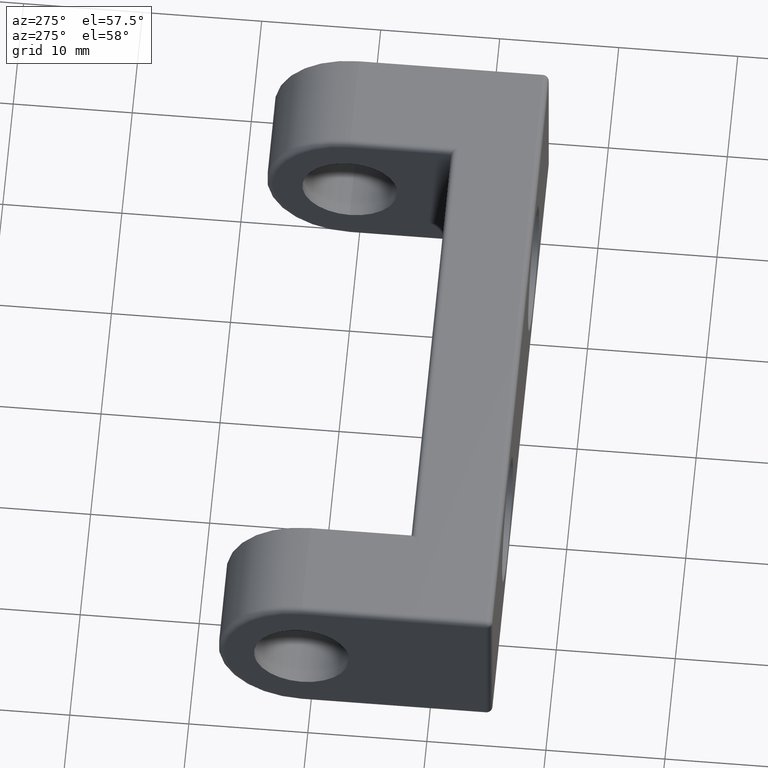
[diagram: clean part render]
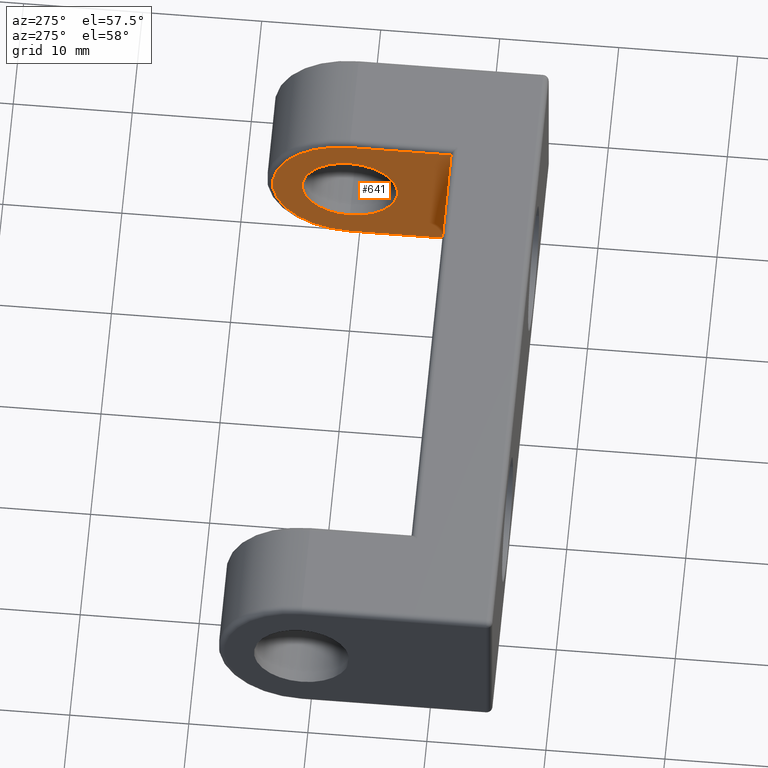
[diagram: same view with one face highlighted and labeled with its STEP entity id]
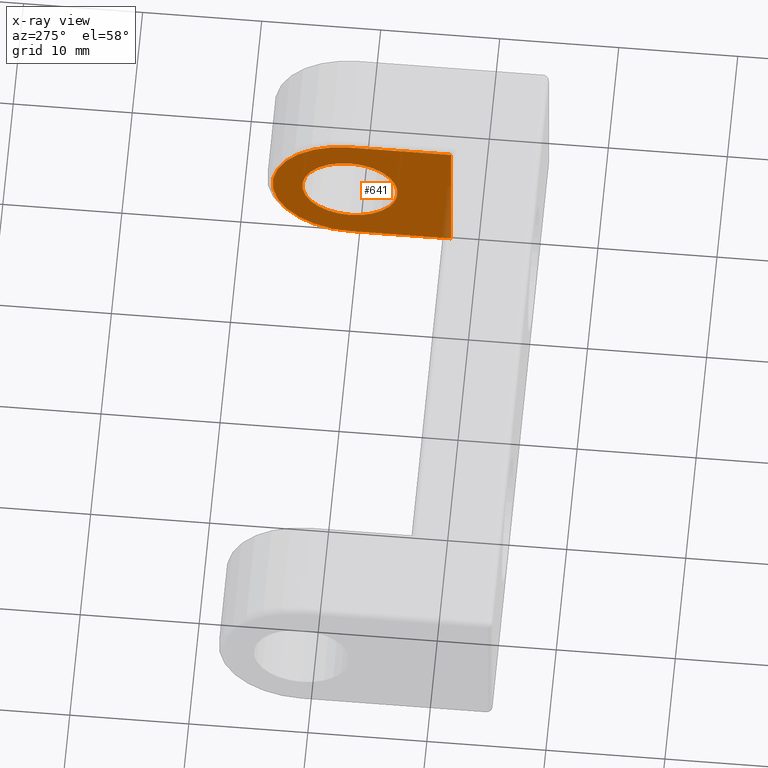
[diagram: x-ray of the same camera — body ghosted, the highlighted face saturated]
A machine part, auxiliary view. The second image highlights one B-rep face of the part: STEP entity #641.
The next image is the same camera in x-ray: the body ghosted, the highlighted face saturated — about 3% of this face is hidden behind the body in this view.
In plain terms, the highlighted planar face has unit normal (-1, 0, 0).
Its self-contained STEP definition (entity closure, byte-faithful):
#36=FACE_BOUND('',#157,.T.);
#49=PLANE('',#734);
#95=FACE_OUTER_BOUND('',#156,.T.);
#156=EDGE_LOOP('',(#560,#561,#562,#563));
#157=EDGE_LOOP('',(#564));
#174=CIRCLE('',#665,6.5);
#210=CIRCLE('',#735,4.);
#211=LINE('',#963,#245);
#222=LINE('',#1007,#256);
#230=LINE('',#1027,#264);
#245=VECTOR('',#743,8.50000000000003);
#256=VECTOR('',#792,8.50000000000003);
#264=VECTOR('',#812,13.);
#279=VERTEX_POINT('',#961);
#280=VERTEX_POINT('',#962);
#291=VERTEX_POINT('',#994);
#293=VERTEX_POINT('',#1000);
#330=VERTEX_POINT('',#1133);
#331=EDGE_CURVE('',#279,#280,#211,.T.);
#352=EDGE_CURVE('',#280,#293,#174,.T.);
#354=EDGE_CURVE('',#293,#291,#222,.T.);
#364=EDGE_CURVE('',#279,#291,#230,.T.);
#412=EDGE_CURVE('',#330,#330,#210,.T.);
#560=ORIENTED_EDGE('',*,*,#331,.F.);
#561=ORIENTED_EDGE('',*,*,#364,.T.);
#562=ORIENTED_EDGE('',*,*,#354,.F.);
#563=ORIENTED_EDGE('',*,*,#352,.F.);
#564=ORIENTED_EDGE('',*,*,#412,.T.);
#641=ADVANCED_FACE('',(#95,#36),#49,.T.);
#665=AXIS2_PLACEMENT_3D('',#1004,#787,#788);
#734=AXIS2_PLACEMENT_3D('',#1132,#949,#950);
#735=AXIS2_PLACEMENT_3D('',#1134,#951,#952);
#743=DIRECTION('',(2.86509167645202E-16,1.,0.));
#787=DIRECTION('center_axis',(1.,-2.86509167645202E-16,0.));
#788=DIRECTION('ref_axis',(2.86509167645202E-16,1.,6.12323399573677E-17));
#792=DIRECTION('',(-2.86509167645202E-16,-1.,0.));
#812=DIRECTION('',(0.,0.,1.));
#949=DIRECTION('center_axis',(-1.,2.86509167645202E-16,0.));
#950=DIRECTION('ref_axis',(-3.5527136788005E-16,-1.,0.));
#951=DIRECTION('center_axis',(1.,-2.86509167645202E-16,0.));
#952=DIRECTION('ref_axis',(0.,0.,1.));
#961=CARTESIAN_POINT('',(19.,-7.75000000000001,-6.5));
#962=CARTESIAN_POINT('',(19.,0.750000000000015,-6.5));
#963=CARTESIAN_POINT('',(19.,0.735962566844914,-6.5));
#994=CARTESIAN_POINT('',(19.,-7.75000000000001,6.5));
#1000=CARTESIAN_POINT('',(19.,0.750000000000015,6.5));
#1004=CARTESIAN_POINT('Origin',(19.,0.750000000000015,0.));
#1007=CARTESIAN_POINT('',(19.,0.735962566844914,6.5));
#1027=CARTESIAN_POINT('',(19.,-7.75000000000001,0.));
#1132=CARTESIAN_POINT('Origin',(19.,7.74999999999999,0.));
#1133=CARTESIAN_POINT('',(19.,0.750000000000016,-4.));
#1134=CARTESIAN_POINT('Origin',(19.,0.750000000000015,0.));